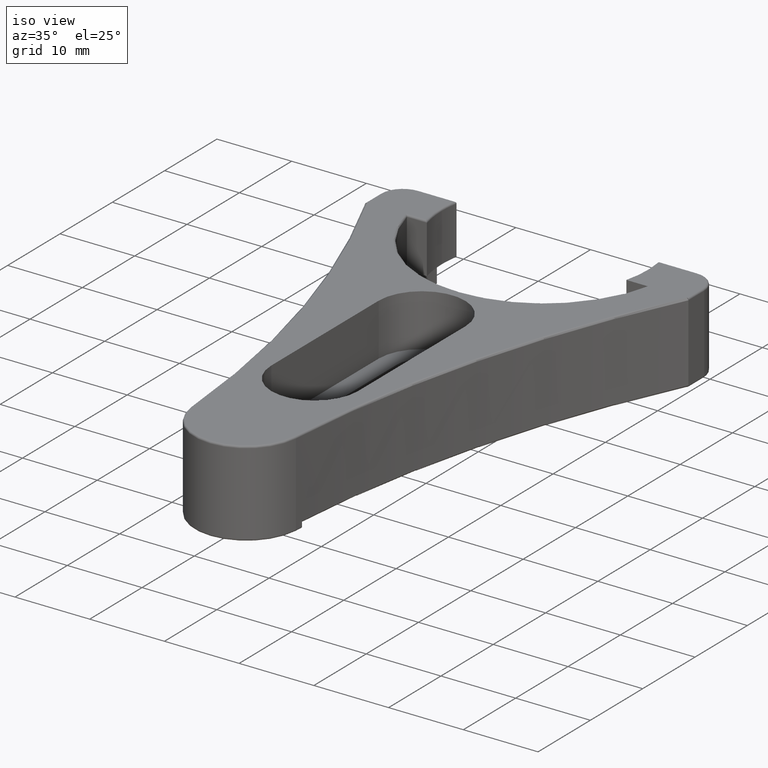
[diagram: clean part render]
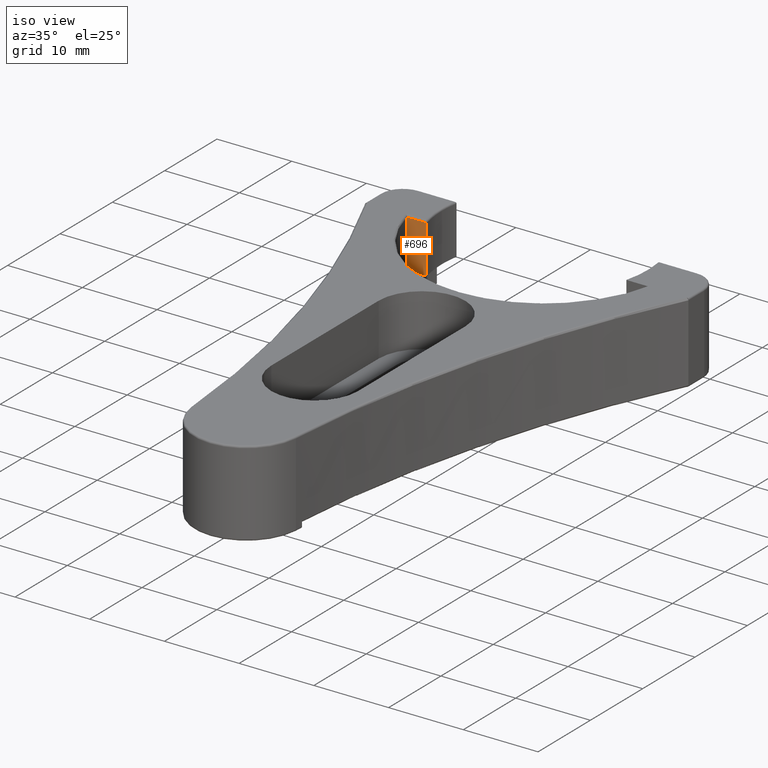
[diagram: same view with one face highlighted and labeled with its STEP entity id]
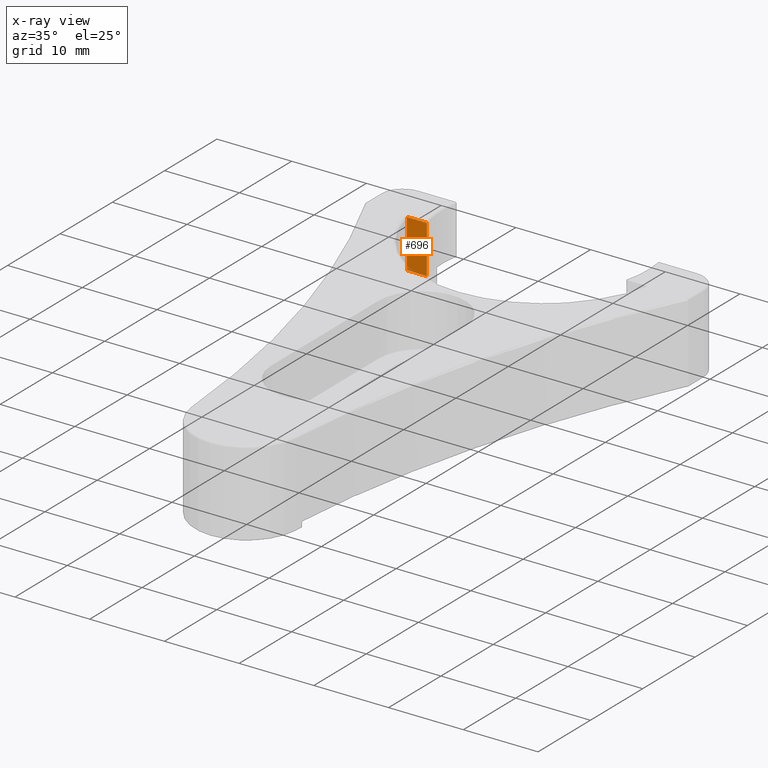
[diagram: x-ray of the same camera — body ghosted, the highlighted face saturated]
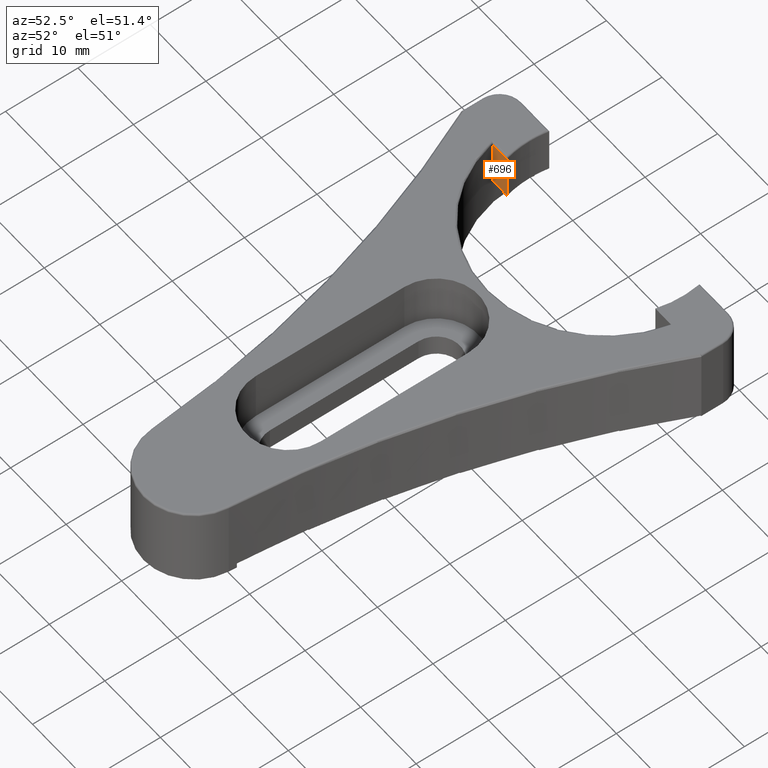
[diagram: same view with one face highlighted and labeled with its STEP entity id]
A machine part, iso view. The second image highlights one B-rep face of the part: STEP entity #696.
The next image is the same camera in x-ray: the body ghosted, the highlighted face saturated — about 2% of this face is hidden behind the body in this view.
A second angle (auxiliary view) of the same face is appended — the face is thin or edge-on in the first view.
In plain terms, the highlighted planar face has unit normal (-0, -1, 0).
Its self-contained STEP definition (entity closure, byte-faithful):
#16 = PLANE ( 'NONE',  #1679 ) ;
#20 = DIRECTION ( 'NONE',  ( -2.128344249352524600E-013, -1.000000000000000000, 0.0000000000000000000 ) ) ;
#81 = CARTESIAN_POINT ( 'NONE',  ( -16.02217213739431400, 53.49999999999991500, 10.55000000000000100 ) ) ;
#105 = EDGE_CURVE ( 'NONE', #1362, #861, #971, .T. ) ;
#111 = ORIENTED_EDGE ( 'NONE', *, *, #1846, .T. ) ;
#118 = VERTEX_POINT ( 'NONE', #1594 ) ;
#139 = DIRECTION ( 'NONE',  ( 1.000000000000000000, -2.128344249352524100E-013, -0.0000000000000000000 ) ) ;
#284 = ORIENTED_EDGE ( 'NONE', *, *, #1923, .T. ) ;
#310 = CARTESIAN_POINT ( 'NONE',  ( 1.138664173403526100E-011, 53.49999999999651100, 10.55000000000000100 ) ) ;
#339 = EDGE_CURVE ( 'NONE', #1362, #1380, #1716, .T. ) ;
#463 = ORIENTED_EDGE ( 'NONE', *, *, #105, .F. ) ;
#563 = VECTOR ( 'NONE', #139, 1000.000000000000000 ) ;
#584 = FACE_OUTER_BOUND ( 'NONE', #941, .T. ) ;
#600 = DIRECTION ( 'NONE',  ( -1.000000000000000000, 2.128344249352524600E-013, 0.0000000000000000000 ) ) ;
#626 = VECTOR ( 'NONE', #1216, 1000.000000000000000 ) ;
#696 = ADVANCED_FACE ( 'NONE', ( #584 ), #16, .T. ) ;
#815 = DIRECTION ( 'NONE',  ( -0.0000000000000000000, -0.0000000000000000000, -1.000000000000000000 ) ) ;
#861 = VERTEX_POINT ( 'NONE', #1567 ) ;
#941 = EDGE_LOOP ( 'NONE', ( #463, #1074, #284, #111 ) ) ;
#971 = LINE ( 'NONE', #1241, #1131 ) ;
#1074 = ORIENTED_EDGE ( 'NONE', *, *, #339, .T. ) ;
#1091 = LINE ( 'NONE', #1675, #563 ) ;
#1131 = VECTOR ( 'NONE', #815, 1000.000000000000000 ) ;
#1216 = DIRECTION ( 'NONE',  ( -0.0000000000000000000, -0.0000000000000000000, -1.000000000000000000 ) ) ;
#1241 = CARTESIAN_POINT ( 'NONE',  ( -13.34878271604723400, 53.49999999999934600, 10.80000000000000100 ) ) ;
#1279 = VECTOR ( 'NONE', #600, 1000.000000000000000 ) ;
#1306 = LINE ( 'NONE', #1537, #626 ) ;
#1362 = VERTEX_POINT ( 'NONE', #1891 ) ;
#1380 = VERTEX_POINT ( 'NONE', #81 ) ;
#1537 = CARTESIAN_POINT ( 'NONE',  ( -16.02217213739431400, 53.49999999999991500, 10.80000000000000100 ) ) ;
#1567 = CARTESIAN_POINT ( 'NONE',  ( -13.34878271604723400, 53.49999999999934600, 4.100000000000001400 ) ) ;
#1594 = CARTESIAN_POINT ( 'NONE',  ( -16.02217213739431400, 53.49999999999991500, 4.099999999999999600 ) ) ;
#1675 = CARTESIAN_POINT ( 'NONE',  ( -13.34878271604723400, 53.49999999999934600, 4.099999999999999600 ) ) ;
#1679 = AXIS2_PLACEMENT_3D ( 'NONE', #1863, #20, #1838 ) ;
#1716 = LINE ( 'NONE', #310, #1279 ) ;
#1838 = DIRECTION ( 'NONE',  ( 1.000000000000000000, -2.128344249352524600E-013, 0.0000000000000000000 ) ) ;
#1846 = EDGE_CURVE ( 'NONE', #118, #861, #1091, .T. ) ;
#1863 = CARTESIAN_POINT ( 'NONE',  ( 1.138664173403526100E-011, 53.49999999999651100, 10.80000000000000100 ) ) ;
#1891 = CARTESIAN_POINT ( 'NONE',  ( -13.34878271604723400, 53.49999999999934600, 10.55000000000000100 ) ) ;
#1923 = EDGE_CURVE ( 'NONE', #1380, #118, #1306, .T. ) ;